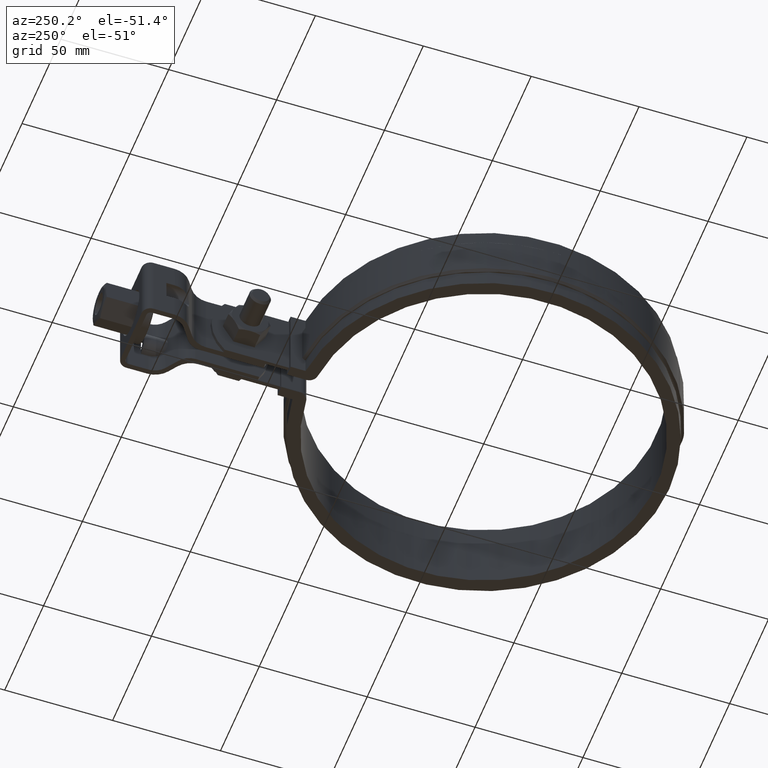
[diagram: clean part render]
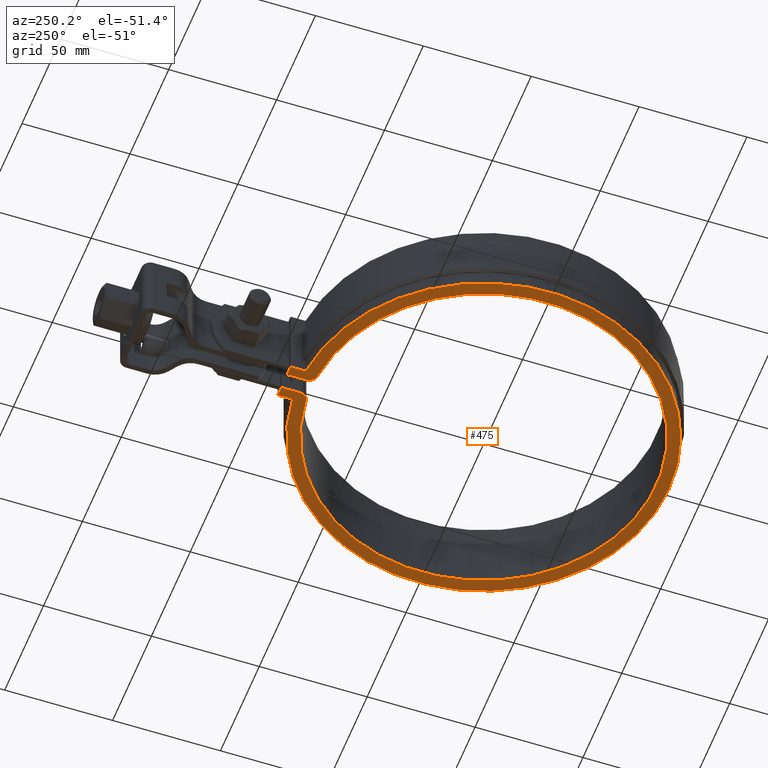
[diagram: same view with one face highlighted and labeled with its STEP entity id]
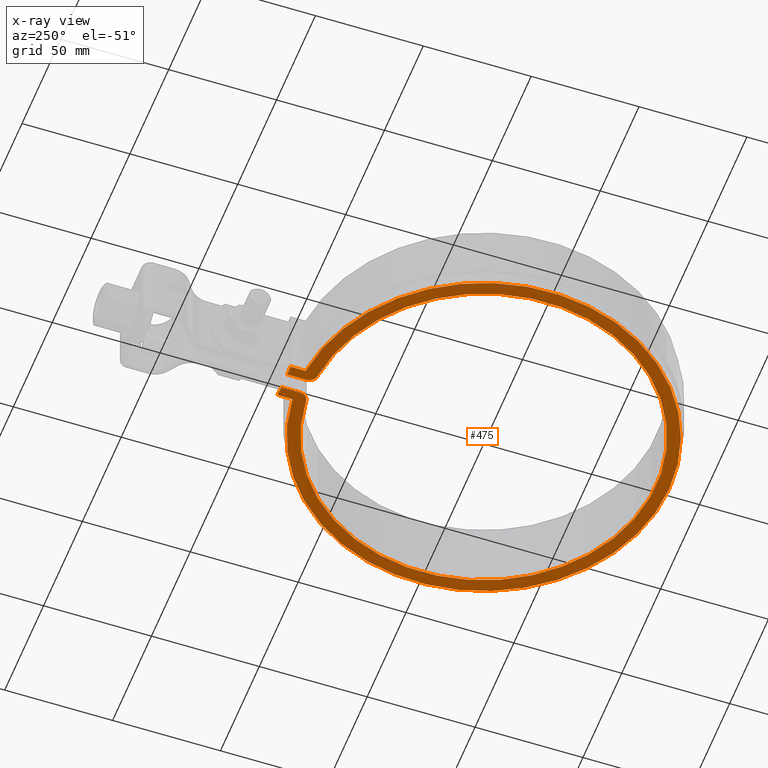
[diagram: x-ray of the same camera — body ghosted, the highlighted face saturated]
A machine part, auxiliary view. The second image highlights one B-rep face of the part: STEP entity #475.
The next image is the same camera in x-ray: the body ghosted, the highlighted face saturated — about 0% of this face is hidden behind the body in this view.
In plain terms, the highlighted planar face has unit normal (0, 0, 1).
Its self-contained STEP definition (entity closure, byte-faithful):
#475 = ADVANCED_FACE( '', ( #848 ), #849, .F. );
#848 = FACE_OUTER_BOUND( '', #1983, .T. );
#849 = PLANE( '', #1984 );
#1983 = EDGE_LOOP( '', ( #4811, #4812, #4813, #4814, #4815, #4816, #4817, #4818, #4819, #4820 ) );
#1984 = AXIS2_PLACEMENT_3D( '', #4821, #4822, #4823 );
#4811 = ORIENTED_EDGE( '', *, *, #5280, .F. );
#4812 = ORIENTED_EDGE( '', *, *, #5411, .F. );
#4813 = ORIENTED_EDGE( '', *, *, #5412, .F. );
#4814 = ORIENTED_EDGE( '', *, *, #5413, .F. );
#4815 = ORIENTED_EDGE( '', *, *, #5370, .F. );
#4816 = ORIENTED_EDGE( '', *, *, #5342, .F. );
#4817 = ORIENTED_EDGE( '', *, *, #5414, .F. );
#4818 = ORIENTED_EDGE( '', *, *, #5361, .F. );
#4819 = ORIENTED_EDGE( '', *, *, #5368, .F. );
#4820 = ORIENTED_EDGE( '', *, *, #5272, .F. );
#4821 = CARTESIAN_POINT( '', ( 0.000000000000000, 0.000000000000000, -33.5000000000000 ) );
#4822 = DIRECTION( '', ( 0.000000000000000, 0.000000000000000, 1.00000000000000 ) );
#4823 = DIRECTION( '', ( 0.000000000000000, 1.00000000000000, 0.000000000000000 ) );
#5272 = EDGE_CURVE( '', #5951, #5953, #5954, .T. );
#5280 = EDGE_CURVE( '', #5966, #5951, #5968, .T. );
#5342 = EDGE_CURVE( '', #6073, #6075, #6076, .T. );
#5361 = EDGE_CURVE( '', #6109, #6080, #6111, .T. );
#5368 = EDGE_CURVE( '', #5953, #6109, #6122, .T. );
#5370 = EDGE_CURVE( '', #6075, #6125, #6126, .T. );
#5411 = EDGE_CURVE( '', #6189, #5966, #6190, .T. );
#5412 = EDGE_CURVE( '', #6191, #6189, #6192, .T. );
#5413 = EDGE_CURVE( '', #6125, #6191, #6193, .T. );
#5414 = EDGE_CURVE( '', #6080, #6073, #6194, .T. );
#5951 = VERTEX_POINT( '', #8119 );
#5953 = VERTEX_POINT( '', #8122 );
#5954 = LINE( '', #8123, #8124 );
#5966 = VERTEX_POINT( '', #8142 );
#5968 = LINE( '', #8145, #8146 );
#6073 = VERTEX_POINT( '', #9266 );
#6075 = VERTEX_POINT( '', #9269 );
#6076 = LINE( '', #9270, #9271 );
#6080 = VERTEX_POINT( '', #9278 );
#6109 = VERTEX_POINT( '', #9312 );
#6111 = CIRCLE( '', #9315, 86.0000000000000 );
#6122 = LINE( '', #9336, #9337 );
#6125 = VERTEX_POINT( '', #9341 );
#6126 = LINE( '', #9342, #9343 );
#6189 = VERTEX_POINT( '', #9427 );
#6190 = CIRCLE( '', #9428, 4.00000000000000 );
#6191 = VERTEX_POINT( '', #9429 );
#6192 = CIRCLE( '', #9430, 80.0000000000000 );
#6193 = CIRCLE( '', #9431, 4.00000000000000 );
#6194 = LINE( '', #9432, #9433 );
#8119 = CARTESIAN_POINT( '', ( -3.80000000000000, 92.5000000000000, -33.5000000000000 ) );
#8122 = CARTESIAN_POINT( '', ( -8.39999999999999, 92.5000000000000, -33.5000000000000 ) );
#8123 = CARTESIAN_POINT( '', ( -3.80000000000000, 92.5000000000000, -33.5000000000000 ) );
#8124 = VECTOR( '', #9926, 1000.00000000000 );
#8142 = CARTESIAN_POINT( '', ( -3.80000000000000, 83.6370731195204, -33.5000000000000 ) );
#8145 = CARTESIAN_POINT( '', ( -3.79999999999999, 83.6370731195204, -33.5000000000000 ) );
#8146 = VECTOR( '', #9934, 1000.00000000000 );
#9266 = CARTESIAN_POINT( '', ( 8.40000000000000, 92.5000000000000, -33.5000000000000 ) );
#9269 = CARTESIAN_POINT( '', ( 3.80000000000003, 92.5000000000000, -33.5000000000000 ) );
#9270 = CARTESIAN_POINT( '', ( 8.40000000000002, 92.5000000000000, -33.5000000000000 ) );
#9271 = VECTOR( '', #9992, 1000.00000000000 );
#9278 = CARTESIAN_POINT( '', ( 8.40000000000003, 85.5887843119646, -33.5000000000000 ) );
#9312 = CARTESIAN_POINT( '', ( -8.40000000000000, 85.5887843119646, -33.5000000000000 ) );
#9315 = AXIS2_PLACEMENT_3D( '', #10029, #10030, #10031 );
#9336 = CARTESIAN_POINT( '', ( -8.39999999999999, 92.5000000000000, -33.5000000000000 ) );
#9337 = VECTOR( '', #10036, 1000.00000000000 );
#9341 = CARTESIAN_POINT( '', ( 3.80000000000002, 83.6370731195204, -33.5000000000000 ) );
#9342 = CARTESIAN_POINT( '', ( 3.80000000000002, 92.5000000000000, -33.5000000000000 ) );
#9343 = VECTOR( '', #10038, 1000.00000000000 );
#9427 = CARTESIAN_POINT( '', ( -7.42857142857141, 79.6543553519242, -33.5000000000000 ) );
#9428 = AXIS2_PLACEMENT_3D( '', #10117, #10118, #10119 );
#9429 = CARTESIAN_POINT( '', ( 7.42857142857145, 79.6543553519242, -33.5000000000000 ) );
#9430 = AXIS2_PLACEMENT_3D( '', #10120, #10121, #10122 );
#9431 = AXIS2_PLACEMENT_3D( '', #10123, #10124, #10125 );
#9432 = CARTESIAN_POINT( '', ( 8.40000000000000, 85.5887843119646, -33.5000000000000 ) );
#9433 = VECTOR( '', #10126, 1000.00000000000 );
#9926 = DIRECTION( '', ( -1.00000000000000, 0.000000000000000, 0.000000000000000 ) );
#9934 = DIRECTION( '', ( 6.10365667473321E-017, 1.00000000000000, 0.000000000000000 ) );
#9992 = DIRECTION( '', ( -1.00000000000000, 0.000000000000000, 0.000000000000000 ) );
#10029 = CARTESIAN_POINT( '', ( 0.000000000000000, 0.000000000000000, -33.5000000000000 ) );
#10030 = DIRECTION( '', ( 0.000000000000000, 0.000000000000000, 1.00000000000000 ) );
#10031 = DIRECTION( '', ( 1.00000000000000, 0.000000000000000, 0.000000000000000 ) );
#10036 = DIRECTION( '', ( -6.42490176287706E-017, -1.00000000000000, 0.000000000000000 ) );
#10038 = DIRECTION( '', ( -6.10365667473321E-017, -1.00000000000000, 0.000000000000000 ) );
#10117 = CARTESIAN_POINT( '', ( -7.80000000000000, 83.6370731195204, -33.5000000000000 ) );
#10118 = DIRECTION( '', ( 0.000000000000000, 0.000000000000000, 1.00000000000000 ) );
#10119 = DIRECTION( '', ( 1.00000000000000, 0.000000000000000, 0.000000000000000 ) );
#10120 = CARTESIAN_POINT( '', ( 0.000000000000000, 0.000000000000000, -33.5000000000000 ) );
#10121 = DIRECTION( '', ( 0.000000000000000, 0.000000000000000, -1.00000000000000 ) );
#10122 = DIRECTION( '', ( 1.00000000000000, 0.000000000000000, 0.000000000000000 ) );
#10123 = CARTESIAN_POINT( '', ( 7.80000000000001, 83.6370731195204, -33.5000000000000 ) );
#10124 = DIRECTION( '', ( 0.000000000000000, 0.000000000000000, 1.00000000000000 ) );
#10125 = DIRECTION( '', ( -1.00000000000000, 0.000000000000000, 0.000000000000000 ) );
#10126 = DIRECTION( '', ( 6.42490176287706E-017, 1.00000000000000, 0.000000000000000 ) );